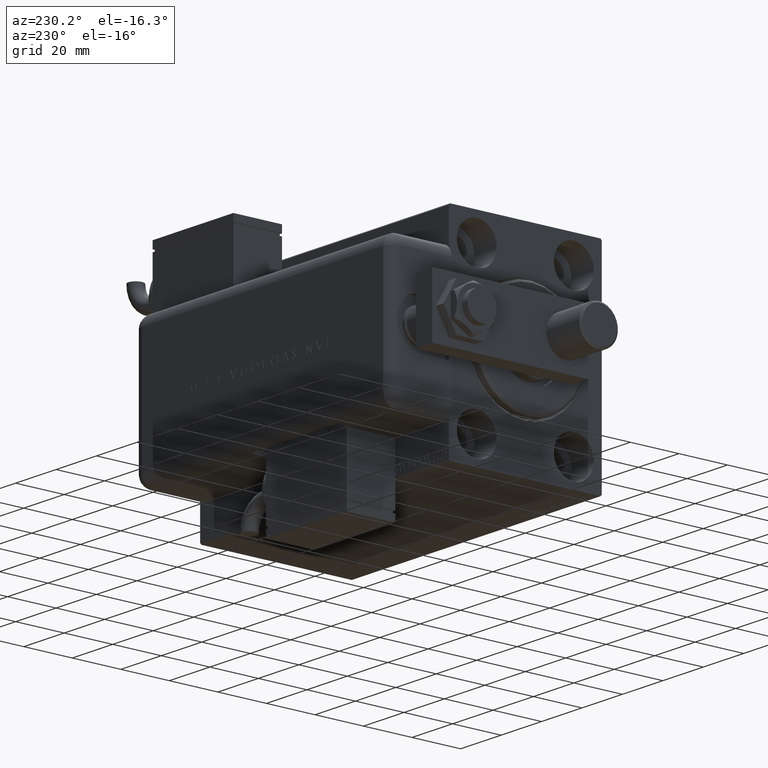
[diagram: clean part render]
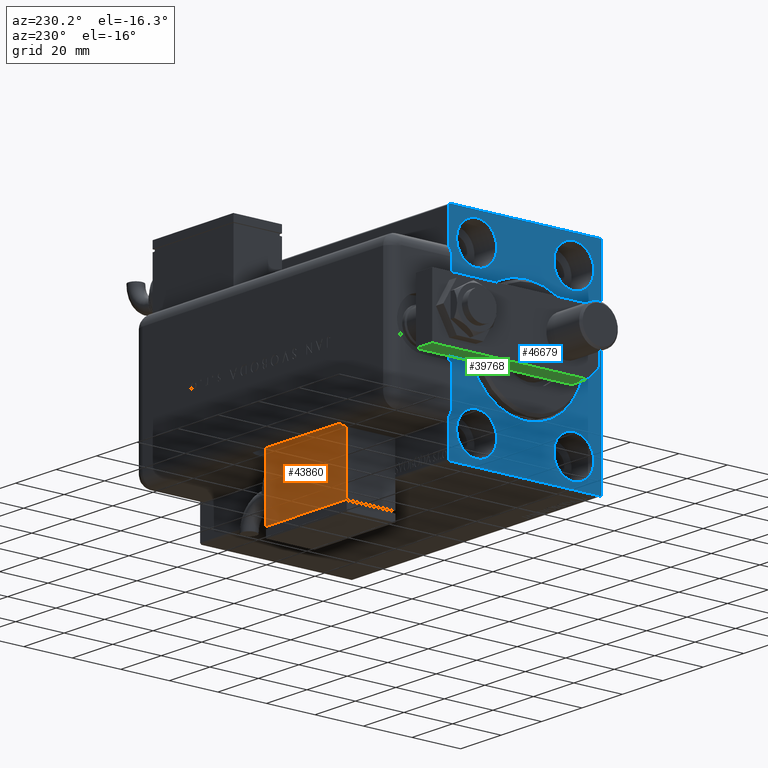
[diagram: same view with three faces highlighted in distinct colors, each labeled with its STEP entity id]
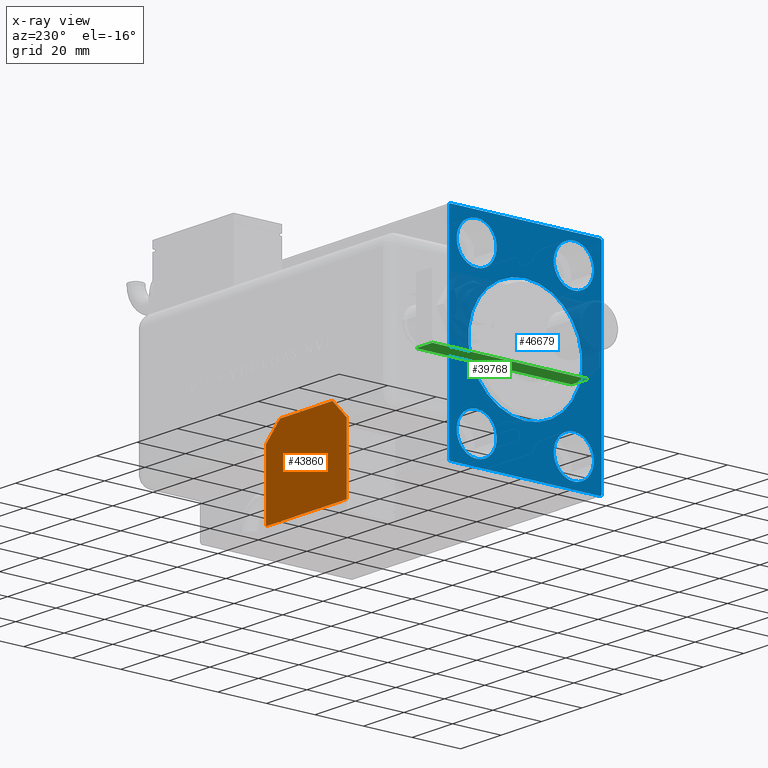
[diagram: x-ray of the same camera — body ghosted, the three highlighted faces saturated]
A machine part, auxiliary view with three faces highlighted in distinct colors.
The next image is the same camera in x-ray (body ghosted, the three faces saturated) — at least one of them is partly hidden behind the body in this view.
Their STEP definitions:

[orange] entity #43860 — the highlighted planar face has unit normal (-0, 1, -0).
#694 = LINE ( 'NONE', #46472, #58662 ) ;
#3015 = CARTESIAN_POINT ( 'NONE',  ( -19.99999999999994316, -13.49999999999996092, 10.00000000000000000 ) ) ;
#4256 = LINE ( 'NONE', #37011, #47129 ) ;
#4502 = FACE_OUTER_BOUND ( 'NONE', #56164, .T. ) ;
#4551 = LINE ( 'NONE', #23942, #36481 ) ;
#5824 = DIRECTION ( 'NONE',  ( -0.7071067811865479058, 0.7071067811865470176, -0.000000000000000000 ) ) ;
#5853 = VECTOR ( 'NONE', #5824, 1000.000000000000114 ) ;
#6962 = LINE ( 'NONE', #3015, #29451 ) ;
#7133 = EDGE_CURVE ( 'NONE', #28915, #36921, #4256, .T. ) ;
#7190 = EDGE_CURVE ( 'NONE', #24134, #38688, #4551, .T. ) ;
#7485 = CARTESIAN_POINT ( 'NONE',  ( 20.00000000000005329, -13.49999999999996092, 10.00000000000000000 ) ) ;
#8301 = DIRECTION ( 'NONE',  ( -0.7071067811865356934, -0.7071067811865593411, -0.000000000000000000 ) ) ;
#8435 = CARTESIAN_POINT ( 'NONE',  ( -19.99999999999994316, -13.49999999999996092, 10.00000000000000000 ) ) ;
#11413 = ORIENTED_EDGE ( 'NONE', *, *, #7133, .T. ) ;
#14884 = EDGE_CURVE ( 'NONE', #36921, #38451, #41032, .T. ) ;
#19694 = DIRECTION ( 'NONE',  ( 1.284980352575412699E-16, 1.000000000000000000, 0.000000000000000000 ) ) ;
#21668 = EDGE_CURVE ( 'NONE', #38688, #28915, #24010, .T. ) ;
#23942 = CARTESIAN_POINT ( 'NONE',  ( 20.00000000000005329, -13.49999999999996092, 10.00000000000000000 ) ) ;
#24010 = LINE ( 'NONE', #56491, #5853 ) ;
#24134 = VERTEX_POINT ( 'NONE', #7485 ) ;
#26783 = CARTESIAN_POINT ( 'NONE',  ( -19.99999999999993960, 13.49999999999986500, 10.00000000000000000 ) ) ;
#27238 = CARTESIAN_POINT ( 'NONE',  ( 0.000000000000000000, 0.000000000000000000, 10.00000000000000000 ) ) ;
#27958 = DIRECTION ( 'NONE',  ( 1.000000000000000000, 0.000000000000000000, 0.000000000000000000 ) ) ;
#27996 = CARTESIAN_POINT ( 'NONE',  ( 12.99999999999999112, 20.50000000000009592, 10.00000000000000000 ) ) ;
#28081 = CARTESIAN_POINT ( 'NONE',  ( -19.99999999999993960, 2.569960705150834076E-15, 10.00000000000000000 ) ) ;
#28915 = VERTEX_POINT ( 'NONE', #27996 ) ;
#29451 = VECTOR ( 'NONE', #44860, 1000.000000000000000 ) ;
#30121 = VECTOR ( 'NONE', #50271, 1000.000000000000000 ) ;
#30456 = VERTEX_POINT ( 'NONE', #28081 ) ;
#31671 = EDGE_CURVE ( 'NONE', #38451, #30456, #49978, .T. ) ;
#31773 = VECTOR ( 'NONE', #8301, 1000.000000000000000 ) ;
#36481 = VECTOR ( 'NONE', #19694, 1000.000000000000000 ) ;
#36921 = VERTEX_POINT ( 'NONE', #49382 ) ;
#37011 = CARTESIAN_POINT ( 'NONE',  ( -10.00000000000004086, 20.50000000000009592, 10.00000000000000000 ) ) ;
#38451 = VERTEX_POINT ( 'NONE', #26783 ) ;
#38688 = VERTEX_POINT ( 'NONE', #46724 ) ;
#41032 = LINE ( 'NONE', #54102, #31773 ) ;
#41205 = DIRECTION ( 'NONE',  ( 1.000000000000000000, 0.000000000000000000, -0.000000000000000000 ) ) ;
#42919 = EDGE_CURVE ( 'NONE', #30456, #48710, #6962, .T. ) ;
#43860 = ADVANCED_FACE ( 'NONE', ( #4502 ), #55762, .T. ) ;
#44860 = DIRECTION ( 'NONE',  ( -1.284980352575421081E-16, -1.000000000000000000, -0.000000000000000000 ) ) ;
#45702 = ORIENTED_EDGE ( 'NONE', *, *, #46407, .T. ) ;
#46407 = EDGE_CURVE ( 'NONE', #48710, #24134, #694, .T. ) ;
#46472 = CARTESIAN_POINT ( 'NONE',  ( -19.99999999999994316, -13.49999999999996092, 10.00000000000000000 ) ) ;
#46724 = CARTESIAN_POINT ( 'NONE',  ( 20.00000000000005684, 13.50000000000003730, 10.00000000000000000 ) ) ;
#47129 = VECTOR ( 'NONE', #56117, 1000.000000000000000 ) ;
#47489 = ORIENTED_EDGE ( 'NONE', *, *, #21668, .T. ) ;
#48710 = VERTEX_POINT ( 'NONE', #55082 ) ;
#49382 = CARTESIAN_POINT ( 'NONE',  ( -12.99999999999994138, 20.50000000000009592, 10.00000000000000000 ) ) ;
#49978 = LINE ( 'NONE', #8435, #30121 ) ;
#50271 = DIRECTION ( 'NONE',  ( -1.284980352575421081E-16, -1.000000000000000000, -0.000000000000000000 ) ) ;
#52615 = ORIENTED_EDGE ( 'NONE', *, *, #7190, .T. ) ;
#53621 = ORIENTED_EDGE ( 'NONE', *, *, #31671, .T. ) ;
#54102 = CARTESIAN_POINT ( 'NONE',  ( -19.99999999999993960, 13.49999999999986500, 10.00000000000000000 ) ) ;
#55082 = CARTESIAN_POINT ( 'NONE',  ( -19.99999999999994316, -13.49999999999996092, 10.00000000000000000 ) ) ;
#55762 = PLANE ( 'NONE',  #57570 ) ;
#56069 = ORIENTED_EDGE ( 'NONE', *, *, #42919, .T. ) ;
#56117 = DIRECTION ( 'NONE',  ( -1.000000000000000000, 0.000000000000000000, 0.000000000000000000 ) ) ;
#56164 = EDGE_LOOP ( 'NONE', ( #47489, #11413, #58103, #53621, #56069, #45702, #52615 ) ) ;
#56491 = CARTESIAN_POINT ( 'NONE',  ( 9.999999999999984013, 23.50000000000009592, 10.00000000000000000 ) ) ;
#57570 = AXIS2_PLACEMENT_3D ( 'NONE', #27238, #59424, #41205 ) ;
#58103 = ORIENTED_EDGE ( 'NONE', *, *, #14884, .T. ) ;
#58662 = VECTOR ( 'NONE', #27958, 1000.000000000000000 ) ;
#59424 = DIRECTION ( 'NONE',  ( 0.000000000000000000, 0.000000000000000000, 1.000000000000000000 ) ) ;

[blue] entity #46679 — the highlighted planar face has unit normal (1, 0, 0).
#676 = CARTESIAN_POINT ( 'NONE',  ( 0.000000000000000000, -31.50000000000000000, 41.99999999999999289 ) ) ;
#1082 = DIRECTION ( 'NONE',  ( -1.000000000000000000, 0.000000000000000000, 0.000000000000000000 ) ) ;
#1213 = EDGE_CURVE ( 'NONE', #58754, #37109, #3107, .T. ) ;
#2577 = VECTOR ( 'NONE', #58874, 1000.000000000000000 ) ;
#2751 = DIRECTION ( 'NONE',  ( 0.000000000000000000, 0.000000000000000000, 1.000000000000000000 ) ) ;
#3107 = LINE ( 'NONE', #53471, #12044 ) ;
#3366 = LINE ( 'NONE', #40350, #2577 ) ;
#3977 = DIRECTION ( 'NONE',  ( -1.000000000000000000, 0.000000000000000000, 0.000000000000000000 ) ) ;
#4609 = EDGE_LOOP ( 'NONE', ( #19600, #58318 ) ) ;
#4751 = CARTESIAN_POINT ( 'NONE',  ( 0.000000000000000000, 31.50000000000001421, -42.00000000000002132 ) ) ;
#5284 = EDGE_CURVE ( 'NONE', #39696, #44437, #7336, .T. ) ;
#6395 = CARTESIAN_POINT ( 'NONE',  ( 0.000000000000000000, -19.99999999999999645, 23.25000000000000355 ) ) ;
#6425 = DIRECTION ( 'NONE',  ( 1.000000000000000000, 0.000000000000000000, 0.000000000000000000 ) ) ;
#7017 = EDGE_CURVE ( 'NONE', #58754, #17518, #3366, .T. ) ;
#7215 = CIRCLE ( 'NONE', #12083, 8.249999999999992895 ) ;
#7336 = CIRCLE ( 'NONE', #41228, 23.50000000000000355 ) ;
#7686 = CARTESIAN_POINT ( 'NONE',  ( 0.000000000000000000, 31.50000000000001421, -42.50000000000000711 ) ) ;
#7813 = DIRECTION ( 'NONE',  ( -1.000000000000000000, 0.000000000000000000, 0.000000000000000000 ) ) ;
#8027 = ORIENTED_EDGE ( 'NONE', *, *, #44635, .F. ) ;
#8225 = CARTESIAN_POINT ( 'NONE',  ( 0.000000000000000000, 20.00000000000000355, 31.50000000000000000 ) ) ;
#8309 = CIRCLE ( 'NONE', #20838, 8.249999999999992895 ) ;
#8525 = DIRECTION ( 'NONE',  ( 0.000000000000000000, 0.000000000000000000, 1.000000000000000000 ) ) ;
#8761 = ORIENTED_EDGE ( 'NONE', *, *, #48600, .F. ) ;
#10265 = ORIENTED_EDGE ( 'NONE', *, *, #51501, .F. ) ;
#10625 = VERTEX_POINT ( 'NONE', #16805 ) ;
#10915 = AXIS2_PLACEMENT_3D ( 'NONE', #32029, #7813, #26299 ) ;
#11659 = DIRECTION ( 'NONE',  ( 0.000000000000000000, -1.632680918566406300E-16, 1.000000000000000000 ) ) ;
#12044 = VECTOR ( 'NONE', #16766, 1000.000000000000114 ) ;
#12083 = AXIS2_PLACEMENT_3D ( 'NONE', #33805, #1082, #56287 ) ;
#12662 = LINE ( 'NONE', #40526, #24686 ) ;
#12673 = VECTOR ( 'NONE', #11659, 1000.000000000000000 ) ;
#14449 = EDGE_LOOP ( 'NONE', ( #27676, #33901 ) ) ;
#14684 = EDGE_LOOP ( 'NONE', ( #30620, #36738, #8761, #32690, #35650, #56061, #33802, #55415 ) ) ;
#14770 = VERTEX_POINT ( 'NONE', #46556 ) ;
#14978 = CIRCLE ( 'NONE', #49953, 23.50000000000000355 ) ;
#16243 = EDGE_CURVE ( 'NONE', #54265, #39048, #51182, .T. ) ;
#16471 = LINE ( 'NONE', #38599, #59138 ) ;
#16503 = LINE ( 'NONE', #7686, #12673 ) ;
#16676 = DIRECTION ( 'NONE',  ( -1.000000000000000000, 0.000000000000000000, 0.000000000000000000 ) ) ;
#16738 = FACE_BOUND ( 'NONE', #29929, .T. ) ;
#16766 = DIRECTION ( 'NONE',  ( -0.000000000000000000, -0.7071067811865573427, 0.7071067811865376918 ) ) ;
#16805 = CARTESIAN_POINT ( 'NONE',  ( 0.000000000000000000, -20.00000000000000355, -39.74999999999999289 ) ) ;
#17264 = DIRECTION ( 'NONE',  ( 0.000000000000000000, 0.000000000000000000, 1.000000000000000000 ) ) ;
#17518 = VERTEX_POINT ( 'NONE', #57211 ) ;
#18622 = CARTESIAN_POINT ( 'NONE',  ( 0.000000000000000000, -31.50000000000000000, 42.49999999999999289 ) ) ;
#18811 = AXIS2_PLACEMENT_3D ( 'NONE', #20938, #33997, #2751 ) ;
#18914 = DIRECTION ( 'NONE',  ( 0.000000000000000000, 0.000000000000000000, -1.000000000000000000 ) ) ;
#19352 = ORIENTED_EDGE ( 'NONE', *, *, #5284, .T. ) ;
#19600 = ORIENTED_EDGE ( 'NONE', *, *, #46750, .F. ) ;
#20355 = CARTESIAN_POINT ( 'NONE',  ( 0.000000000000000000, 0.000000000000000000, 0.000000000000000000 ) ) ;
#20838 = AXIS2_PLACEMENT_3D ( 'NONE', #8225, #22453, #54926 ) ;
#20938 = CARTESIAN_POINT ( 'NONE',  ( 0.000000000000000000, 19.99999999999999645, -31.49999999999999289 ) ) ;
#21360 = VERTEX_POINT ( 'NONE', #55722 ) ;
#21476 = CARTESIAN_POINT ( 'NONE',  ( 0.000000000000000000, 31.50000000000000000, 42.00000000000002132 ) ) ;
#21540 = VECTOR ( 'NONE', #46217, 1000.000000000000000 ) ;
#21563 = FACE_BOUND ( 'NONE', #4609, .T. ) ;
#22453 = DIRECTION ( 'NONE',  ( -1.000000000000000000, 0.000000000000000000, 0.000000000000000000 ) ) ;
#24358 = CARTESIAN_POINT ( 'NONE',  ( 0.000000000000000000, 19.99999999999999645, -23.24999999999999289 ) ) ;
#24664 = VERTEX_POINT ( 'NONE', #24358 ) ;
#24686 = VECTOR ( 'NONE', #49648, 1000.000000000000000 ) ;
#24857 = CARTESIAN_POINT ( 'NONE',  ( 0.000000000000000000, 2.877919977996280715E-15, -23.50000000000000355 ) ) ;
#24909 = DIRECTION ( 'NONE',  ( 0.000000000000000000, 0.000000000000000000, -1.000000000000000000 ) ) ;
#25427 = DIRECTION ( 'NONE',  ( 0.000000000000000000, 0.000000000000000000, -1.000000000000000000 ) ) ;
#26299 = DIRECTION ( 'NONE',  ( 0.000000000000000000, 0.000000000000000000, 1.000000000000000000 ) ) ;
#26528 = EDGE_CURVE ( 'NONE', #36211, #58676, #16503, .T. ) ;
#27676 = ORIENTED_EDGE ( 'NONE', *, *, #40114, .F. ) ;
#27695 = CARTESIAN_POINT ( 'NONE',  ( 0.000000000000000000, 31.00000000000000000, 42.50000000000000711 ) ) ;
#28631 = CIRCLE ( 'NONE', #44133, 8.250000000000000000 ) ;
#29454 = FACE_BOUND ( 'NONE', #14449, .T. ) ;
#29929 = EDGE_LOOP ( 'NONE', ( #47837, #36430 ) ) ;
#30295 = CARTESIAN_POINT ( 'NONE',  ( 0.000000000000000000, -19.99999999999999645, 31.50000000000000000 ) ) ;
#30620 = ORIENTED_EDGE ( 'NONE', *, *, #40451, .F. ) ;
#30805 = CARTESIAN_POINT ( 'NONE',  ( 0.000000000000000000, -31.50000000000000000, -42.00000000000003553 ) ) ;
#30907 = CARTESIAN_POINT ( 'NONE',  ( 0.000000000000000000, -20.00000000000000355, -23.24999999999999289 ) ) ;
#31048 = DIRECTION ( 'NONE',  ( 0.000000000000000000, 0.000000000000000000, -1.000000000000000000 ) ) ;
#31058 = EDGE_CURVE ( 'NONE', #36472, #35279, #44673, .T. ) ;
#31184 = CARTESIAN_POINT ( 'NONE',  ( 0.000000000000000000, 0.000000000000000000, 0.000000000000000000 ) ) ;
#32029 = CARTESIAN_POINT ( 'NONE',  ( 0.000000000000000000, -20.00000000000000355, -31.49999999999999289 ) ) ;
#32690 = ORIENTED_EDGE ( 'NONE', *, *, #40455, .T. ) ;
#32864 = LINE ( 'NONE', #27695, #21540 ) ;
#33171 = LINE ( 'NONE', #18622, #52550 ) ;
#33277 = AXIS2_PLACEMENT_3D ( 'NONE', #57776, #47166, #33510 ) ;
#33510 = DIRECTION ( 'NONE',  ( 0.000000000000000000, 0.000000000000000000, 1.000000000000000000 ) ) ;
#33802 = ORIENTED_EDGE ( 'NONE', *, *, #7017, .F. ) ;
#33805 = CARTESIAN_POINT ( 'NONE',  ( 0.000000000000000000, -19.99999999999999645, 31.50000000000000000 ) ) ;
#33901 = ORIENTED_EDGE ( 'NONE', *, *, #43410, .F. ) ;
#33997 = DIRECTION ( 'NONE',  ( -1.000000000000000000, 0.000000000000000000, 0.000000000000000000 ) ) ;
#34318 = PLANE ( 'NONE',  #53811 ) ;
#34337 = DIRECTION ( 'NONE',  ( -1.000000000000000000, 0.000000000000000000, 0.000000000000000000 ) ) ;
#34719 = CARTESIAN_POINT ( 'NONE',  ( 0.000000000000000000, 0.000000000000000000, 0.000000000000000000 ) ) ;
#34770 = EDGE_CURVE ( 'NONE', #36211, #17518, #16471, .T. ) ;
#35222 = FACE_OUTER_BOUND ( 'NONE', #14684, .T. ) ;
#35279 = VERTEX_POINT ( 'NONE', #42117 ) ;
#35611 = DIRECTION ( 'NONE',  ( 1.000000000000000000, 0.000000000000000000, 0.000000000000000000 ) ) ;
#35650 = ORIENTED_EDGE ( 'NONE', *, *, #26528, .F. ) ;
#36211 = VERTEX_POINT ( 'NONE', #4751 ) ;
#36430 = ORIENTED_EDGE ( 'NONE', *, *, #16243, .F. ) ;
#36472 = VERTEX_POINT ( 'NONE', #676 ) ;
#36738 = ORIENTED_EDGE ( 'NONE', *, *, #31058, .T. ) ;
#37109 = VERTEX_POINT ( 'NONE', #30805 ) ;
#37258 = ORIENTED_EDGE ( 'NONE', *, *, #48153, .T. ) ;
#38008 = CARTESIAN_POINT ( 'NONE',  ( 0.000000000000000000, -20.00000000000000355, -31.49999999999999289 ) ) ;
#38211 = CIRCLE ( 'NONE', #18811, 8.250000000000000000 ) ;
#38599 = CARTESIAN_POINT ( 'NONE',  ( 0.000000000000000000, 31.50000000000001421, -42.00000000000002132 ) ) ;
#39048 = VERTEX_POINT ( 'NONE', #55462 ) ;
#39696 = VERTEX_POINT ( 'NONE', #24857 ) ;
#39869 = VERTEX_POINT ( 'NONE', #30907 ) ;
#40114 = EDGE_CURVE ( 'NONE', #39869, #10625, #50631, .T. ) ;
#40350 = CARTESIAN_POINT ( 'NONE',  ( 0.000000000000000000, -31.50000000000000000, -42.50000000000000711 ) ) ;
#40451 = EDGE_CURVE ( 'NONE', #36472, #37109, #33171, .T. ) ;
#40455 = EDGE_CURVE ( 'NONE', #21360, #58676, #32864, .T. ) ;
#40526 = CARTESIAN_POINT ( 'NONE',  ( 0.000000000000000000, 31.50000000000000000, 42.50000000000000711 ) ) ;
#41228 = AXIS2_PLACEMENT_3D ( 'NONE', #31184, #58203, #25427 ) ;
#41629 = CARTESIAN_POINT ( 'NONE',  ( 0.000000000000000000, 20.00000000000000355, 39.74999999999999289 ) ) ;
#42117 = CARTESIAN_POINT ( 'NONE',  ( 0.000000000000000000, -31.00000000000000000, 42.49999999999999289 ) ) ;
#42309 = EDGE_CURVE ( 'NONE', #43965, #52030, #52633, .T. ) ;
#42404 = CARTESIAN_POINT ( 'NONE',  ( 0.000000000000000000, 20.00000000000000355, 23.25000000000000355 ) ) ;
#43410 = EDGE_CURVE ( 'NONE', #10625, #39869, #45910, .T. ) ;
#43965 = VERTEX_POINT ( 'NONE', #42404 ) ;
#44133 = AXIS2_PLACEMENT_3D ( 'NONE', #50074, #3977, #8525 ) ;
#44437 = VERTEX_POINT ( 'NONE', #45854 ) ;
#44635 = EDGE_CURVE ( 'NONE', #14770, #24664, #38211, .T. ) ;
#44673 = LINE ( 'NONE', #48919, #57190 ) ;
#44969 = DIRECTION ( 'NONE',  ( -0.000000000000000000, 0.7071067811865474617, 0.7071067811865474617 ) ) ;
#45344 = EDGE_LOOP ( 'NONE', ( #10265, #8027 ) ) ;
#45728 = CARTESIAN_POINT ( 'NONE',  ( 0.000000000000000000, -31.00000000000001421, -42.50000000000000711 ) ) ;
#45854 = CARTESIAN_POINT ( 'NONE',  ( 0.000000000000000000, 0.000000000000000000, 23.50000000000000355 ) ) ;
#45910 = CIRCLE ( 'NONE', #46867, 8.250000000000000000 ) ;
#46217 = DIRECTION ( 'NONE',  ( -0.000000000000000000, 0.7071067811865573427, -0.7071067811865378028 ) ) ;
#46232 = EDGE_LOOP ( 'NONE', ( #37258, #19352 ) ) ;
#46556 = CARTESIAN_POINT ( 'NONE',  ( 0.000000000000000000, 19.99999999999999645, -39.74999999999999289 ) ) ;
#46679 = ADVANCED_FACE ( 'NONE', ( #49175, #58289, #16738, #21563, #29454, #35222 ), #34318, .F. ) ;
#46750 = EDGE_CURVE ( 'NONE', #52030, #43965, #8309, .T. ) ;
#46867 = AXIS2_PLACEMENT_3D ( 'NONE', #38008, #34337, #57704 ) ;
#47166 = DIRECTION ( 'NONE',  ( -1.000000000000000000, 0.000000000000000000, 0.000000000000000000 ) ) ;
#47837 = ORIENTED_EDGE ( 'NONE', *, *, #47886, .F. ) ;
#47886 = EDGE_CURVE ( 'NONE', #39048, #54265, #7215, .T. ) ;
#48153 = EDGE_CURVE ( 'NONE', #44437, #39696, #14978, .T. ) ;
#48600 = EDGE_CURVE ( 'NONE', #21360, #35279, #12662, .T. ) ;
#48919 = CARTESIAN_POINT ( 'NONE',  ( 0.000000000000000000, -31.50000000000000000, 41.99999999999999289 ) ) ;
#49175 = FACE_BOUND ( 'NONE', #46232, .T. ) ;
#49648 = DIRECTION ( 'NONE',  ( 0.000000000000000000, -1.000000000000000000, -2.202823461557850341E-16 ) ) ;
#49953 = AXIS2_PLACEMENT_3D ( 'NONE', #34719, #35611, #31048 ) ;
#50074 = CARTESIAN_POINT ( 'NONE',  ( 0.000000000000000000, 19.99999999999999645, -31.49999999999999289 ) ) ;
#50631 = CIRCLE ( 'NONE', #10915, 8.250000000000000000 ) ;
#51182 = CIRCLE ( 'NONE', #56047, 8.249999999999992895 ) ;
#51501 = EDGE_CURVE ( 'NONE', #24664, #14770, #28631, .T. ) ;
#52030 = VERTEX_POINT ( 'NONE', #41629 ) ;
#52550 = VECTOR ( 'NONE', #18914, 1000.000000000000000 ) ;
#52633 = CIRCLE ( 'NONE', #33277, 8.249999999999992895 ) ;
#53471 = CARTESIAN_POINT ( 'NONE',  ( 0.000000000000000000, -31.00000000000001421, -42.50000000000000711 ) ) ;
#53475 = DIRECTION ( 'NONE',  ( 0.000000000000000000, -0.7071067811865376918, -0.7071067811865573427 ) ) ;
#53811 = AXIS2_PLACEMENT_3D ( 'NONE', #20355, #6425, #24909 ) ;
#54265 = VERTEX_POINT ( 'NONE', #6395 ) ;
#54926 = DIRECTION ( 'NONE',  ( 0.000000000000000000, 0.000000000000000000, 1.000000000000000000 ) ) ;
#55415 = ORIENTED_EDGE ( 'NONE', *, *, #1213, .T. ) ;
#55462 = CARTESIAN_POINT ( 'NONE',  ( 0.000000000000000000, -19.99999999999999645, 39.74999999999999289 ) ) ;
#55722 = CARTESIAN_POINT ( 'NONE',  ( 0.000000000000000000, 31.00000000000000000, 42.50000000000000711 ) ) ;
#56047 = AXIS2_PLACEMENT_3D ( 'NONE', #30295, #16676, #17264 ) ;
#56061 = ORIENTED_EDGE ( 'NONE', *, *, #34770, .T. ) ;
#56287 = DIRECTION ( 'NONE',  ( 0.000000000000000000, 0.000000000000000000, 1.000000000000000000 ) ) ;
#57190 = VECTOR ( 'NONE', #44969, 1000.000000000000114 ) ;
#57211 = CARTESIAN_POINT ( 'NONE',  ( 0.000000000000000000, 31.00000000000004263, -42.50000000000000711 ) ) ;
#57704 = DIRECTION ( 'NONE',  ( 0.000000000000000000, 0.000000000000000000, 1.000000000000000000 ) ) ;
#57776 = CARTESIAN_POINT ( 'NONE',  ( 0.000000000000000000, 20.00000000000000355, 31.50000000000000000 ) ) ;
#58203 = DIRECTION ( 'NONE',  ( 1.000000000000000000, 0.000000000000000000, 0.000000000000000000 ) ) ;
#58289 = FACE_BOUND ( 'NONE', #45344, .T. ) ;
#58318 = ORIENTED_EDGE ( 'NONE', *, *, #42309, .F. ) ;
#58676 = VERTEX_POINT ( 'NONE', #21476 ) ;
#58754 = VERTEX_POINT ( 'NONE', #45728 ) ;
#58874 = DIRECTION ( 'NONE',  ( 0.000000000000000000, 1.000000000000000000, 0.000000000000000000 ) ) ;
#59138 = VECTOR ( 'NONE', #53475, 1000.000000000000114 ) ;

[green] entity #39768 — the highlighted planar face has unit normal (0, -0, 1).
#269 = VERTEX_POINT ( 'NONE', #26422 ) ;
#784 = CARTESIAN_POINT ( 'NONE',  ( 12.50000000000000178, 69.00000000000000000, 8.000000000000000000 ) ) ;
#2050 = EDGE_CURVE ( 'NONE', #269, #33578, #36531, .T. ) ;
#3040 = LINE ( 'NONE', #21523, #29063 ) ;
#3728 = CARTESIAN_POINT ( 'NONE',  ( 12.50000000000000178, 69.00000000000000000, 8.000000000000000000 ) ) ;
#4142 = ORIENTED_EDGE ( 'NONE', *, *, #29464, .T. ) ;
#6379 = DIRECTION ( 'NONE',  ( -1.000000000000000000, -1.257045997084642611E-16, 0.000000000000000000 ) ) ;
#7626 = VECTOR ( 'NONE', #9168, 1000.000000000000000 ) ;
#9168 = DIRECTION ( 'NONE',  ( -0.000000000000000000, -0.000000000000000000, -1.000000000000000000 ) ) ;
#11039 = CARTESIAN_POINT ( 'NONE',  ( 12.50000000000001066, 5.000000000000003553, 8.000000000000000000 ) ) ;
#11100 = ORIENTED_EDGE ( 'NONE', *, *, #58467, .F. ) ;
#11544 = CARTESIAN_POINT ( 'NONE',  ( 12.50000000000001066, 0.000000000000000000, 8.000000000000000000 ) ) ;
#11891 = CARTESIAN_POINT ( 'NONE',  ( 12.50000000000000178, 69.00000000000000000, 0.000000000000000000 ) ) ;
#16775 = EDGE_CURVE ( 'NONE', #269, #44246, #39508, .T. ) ;
#17688 = LINE ( 'NONE', #3728, #7626 ) ;
#18277 = VECTOR ( 'NONE', #57735, 1000.000000000000000 ) ;
#21212 = PLANE ( 'NONE',  #36106 ) ;
#21220 = DIRECTION ( 'NONE',  ( -1.257045997084642611E-16, 1.000000000000000000, 0.000000000000000000 ) ) ;
#21523 = CARTESIAN_POINT ( 'NONE',  ( 12.50000000000001066, 0.000000000000000000, 0.000000000000000000 ) ) ;
#26422 = CARTESIAN_POINT ( 'NONE',  ( 12.50000000000001066, 5.000000000000003553, 8.000000000000000000 ) ) ;
#29063 = VECTOR ( 'NONE', #21220, 1000.000000000000000 ) ;
#29464 = EDGE_CURVE ( 'NONE', #44246, #46578, #3040, .T. ) ;
#33179 = CARTESIAN_POINT ( 'NONE',  ( 12.50000000000001066, 5.000000000000003553, 0.000000000000000000 ) ) ;
#33578 = VERTEX_POINT ( 'NONE', #784 ) ;
#36106 = AXIS2_PLACEMENT_3D ( 'NONE', #11544, #6379, #44273 ) ;
#36531 = LINE ( 'NONE', #45627, #49819 ) ;
#39508 = LINE ( 'NONE', #11039, #18277 ) ;
#39768 = ADVANCED_FACE ( 'NONE', ( #48212 ), #21212, .F. ) ;
#44246 = VERTEX_POINT ( 'NONE', #33179 ) ;
#44273 = DIRECTION ( 'NONE',  ( 1.257045997084642611E-16, -1.000000000000000000, 0.000000000000000000 ) ) ;
#45627 = CARTESIAN_POINT ( 'NONE',  ( 12.50000000000001066, 0.000000000000000000, 8.000000000000000000 ) ) ;
#46224 = ORIENTED_EDGE ( 'NONE', *, *, #16775, .T. ) ;
#46578 = VERTEX_POINT ( 'NONE', #11891 ) ;
#48212 = FACE_OUTER_BOUND ( 'NONE', #59485, .T. ) ;
#49819 = VECTOR ( 'NONE', #55034, 1000.000000000000000 ) ;
#55034 = DIRECTION ( 'NONE',  ( -1.257045997084642611E-16, 1.000000000000000000, 0.000000000000000000 ) ) ;
#57735 = DIRECTION ( 'NONE',  ( 0.000000000000000000, 0.000000000000000000, -1.000000000000000000 ) ) ;
#58467 = EDGE_CURVE ( 'NONE', #33578, #46578, #17688, .T. ) ;
#59390 = ORIENTED_EDGE ( 'NONE', *, *, #2050, .F. ) ;
#59485 = EDGE_LOOP ( 'NONE', ( #59390, #46224, #4142, #11100 ) ) ;